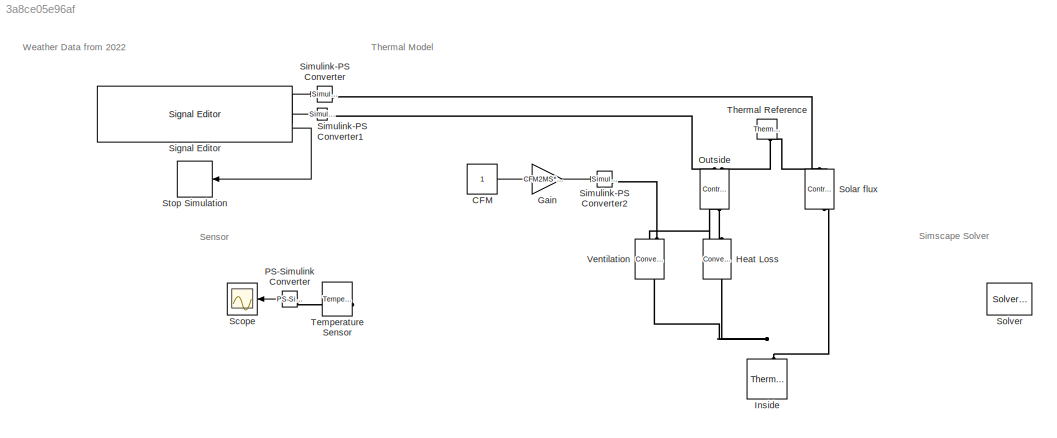
MODEL slx_3a8ce05e96af
KIND model
CONFIG AbsTol = auto
CONFIG EnableMultiTasking = off
CONFIG FixedStep = auto
CONFIG MaxStep = auto
CONFIG MinStep = auto
CONFIG RelTol = 1e-3
CONFIG SampleTimeConstraint = Unconstrained
CONFIG SolverName = VariableStepAuto
CONFIG StartTime = 0.0
CONFIG StopTime = 1e8
WORKSPACE source: mxarray member
WORKSPACE CFM2MS: Simulink.Parameter (value not decoded)
WORKSPACE Cp: Simulink.Parameter (value not decoded)
WORKSPACE Density: Simulink.Parameter (value not decoded)
WORKSPACE Height: Simulink.Parameter (value not decoded)
WORKSPACE Length: Simulink.Parameter (value not decoded)
BLOCK [Constant] CFM
BLOCK [Gain] Gain
  Gain = CFM2MS*Cp*Density
BLOCK [Reference] Heat Loss  REF=fl_lib/Thermal/Thermal Elements/Convective Heat
Transfer
  NameLocation = right
  SourceBlock = fl_lib/Thermal/Thermal Elements/Convective Heat\nTransfer
  SourceType = Convective Heat\nTransfer
BLOCK [Reference] Inside  REF=fl_lib/Thermal/Thermal Elements/Thermal Mass
  NameLocation = right
  SourceBlock = fl_lib/Thermal/Thermal Elements/Thermal Mass
  SourceType = Thermal Mass
BLOCK [Reference] Outside  REF=fl_lib/Thermal/Thermal Sources/Controlled
Temperature Source
  NameLocation = right
  SourceBlock = fl_lib/Thermal/Thermal Sources/Controlled\nTemperature Source
  SourceType = Controlled\nTemperature Source
BLOCK [Reference] PS-Simulink Converter  REF=nesl_utility/PS-Simulink
Converter
  NameLocation = top
  SourceBlock = nesl_utility/PS-Simulink\nConverter
  SourceType = PS-Simulink\nConverter
BLOCK [Scope] Scope
  Commented = on
  Floating = off
  NameLocation = top
  NumInputPorts = 1
  ScopeSpecificationString = Simulink.scopes.TimeScopeBlockCfg('CurrentConfiguration', extmgr.ConfigurationSet(extmgr.Configuration('Core','General UI',true),extmgr.Configuration('Core','Source UI',true),extmgr.Configuration('Sources','WiredSimulink',true),extmgr.Configuration('Visuals','Time Domain',true,'SerializedDisplays',{struct('MinYLimReal','250.61157','MaxYLimReal','317.62057','YLabelReal','','MinYLimMag','250.61157',...<+1434ch>
BLOCK [Reference] Signal Editor  REF=SignalEditorBlockLib/Signal Editor
  LibrarySourceBlock = simulink/Sources/Signal Editor
  SourceBlock = SignalEditorBlockLib/Signal Editor
  SourceType = SignalEditor
  UserDataPersistent = on
BLOCK [Reference] Simulink-PS Converter  REF=nesl_utility/Simulink-PS
Converter
  SourceBlock = nesl_utility/Simulink-PS\nConverter
  SourceType = Simulink-PS\nConverter
BLOCK [Reference] Simulink-PS Converter1  REF=nesl_utility/Simulink-PS
Converter
  SourceBlock = nesl_utility/Simulink-PS\nConverter
  SourceType = Simulink-PS\nConverter
BLOCK [Reference] Simulink-PS Converter2  REF=nesl_utility/Simulink-PS
Converter
  SourceBlock = nesl_utility/Simulink-PS\nConverter
  SourceType = Simulink-PS\nConverter
BLOCK [Reference] Solar flux  REF=fl_lib/Thermal/Thermal Sources/Controlled Heat Flow
Rate Source
  NameLocation = right
  SourceBlock = fl_lib/Thermal/Thermal Sources/Controlled Heat Flow\nRate Source
  SourceType = Controlled Heat Flow\nRate Source
BLOCK [Reference] Solver  REF=nesl_utility/Solver
Configuration
  SourceBlock = nesl_utility/Solver\nConfiguration
  SourceType = Solver\nConfiguration
BLOCK [Stop] Stop Simulation
  NameLocation = top
BLOCK [Reference] Temperature Sensor  REF=fl_lib/Thermal/Thermal Sensors/Temperature Sensor
  Commented = on
  NameLocation = top
  SourceBlock = fl_lib/Thermal/Thermal Sensors/Temperature Sensor
  SourceType = Temperature Sensor
BLOCK [Reference] Thermal Reference  REF=fl_lib/Thermal/Thermal Elements/Thermal Reference
  NameLocation = top
  SourceBlock = fl_lib/Thermal/Thermal Elements/Thermal Reference
  SourceType = Thermal Reference
BLOCK [Reference] Ventilation  REF=fl_lib/Thermal/Thermal Elements/Convective Heat
Transfer
  NameLocation = left
  SourceBlock = fl_lib/Thermal/Thermal Elements/Convective Heat\nTransfer
  SourceType = Convective Heat\nTransfer
ANNOTATION (root): Sensor
ANNOTATION (root): Simscape Solver
ANNOTATION (root): Thermal Model
ANNOTATION (root): Weather Data from 2022
LINE CFM:1 -> Gain:1
LINE Gain:1 -> Simulink-PS Converter2:1
LINE PS-Simulink Converter:1 -> Scope:1
LINE Signal Editor:1 -> Simulink-PS Converter:1
LINE Signal Editor:2 -> Simulink-PS Converter1:1
LINE Signal Editor:3 -> Stop Simulation:1
PNET net1: Heat Loss:LConn1 -- Inside:LConn1 -- Solar flux:LConn1 -- Ventilation:RConn1
PNET net2: Heat Loss:RConn1 -- Outside:LConn1 -- Ventilation:LConn1
PLINE Outside:RConn1 -- Simulink-PS Converter1:RConn1
PNET net3: Outside:RConn2 -- Solar flux:RConn2 -- Thermal Reference:LConn1
PLINE PS-Simulink Converter:LConn1 -- Temperature Sensor:RConn1
PLINE Simulink-PS Converter2:RConn1 -- Ventilation:LConn2
PLINE Simulink-PS Converter:RConn1 -- Solar flux:RConn1
note: PNET lines group multi-terminal physical nets as a canonical sorted terminal list (undirected conserving connections); 2-terminal nets keep the pairwise PLINE form
